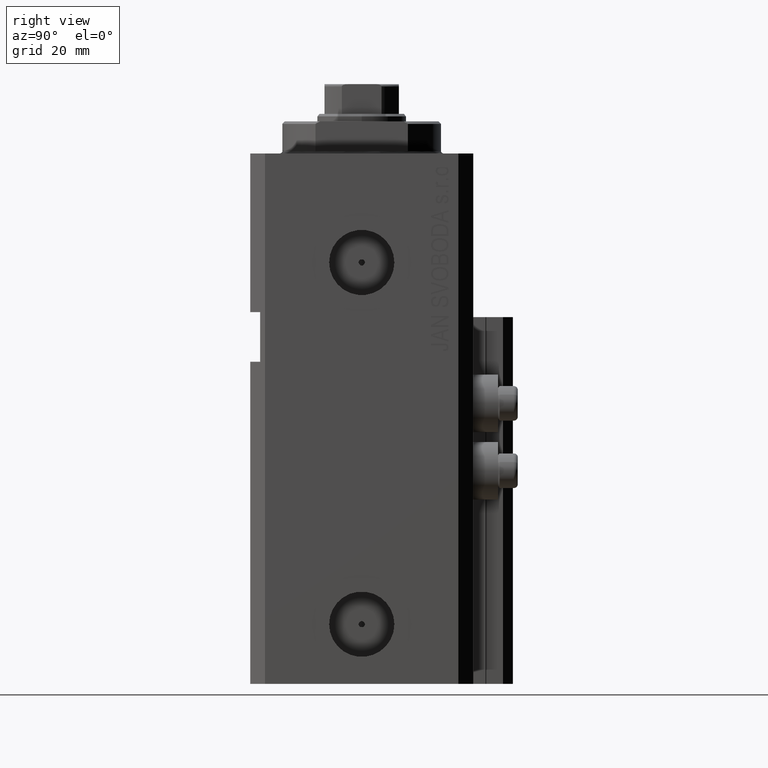
[diagram: clean part render]
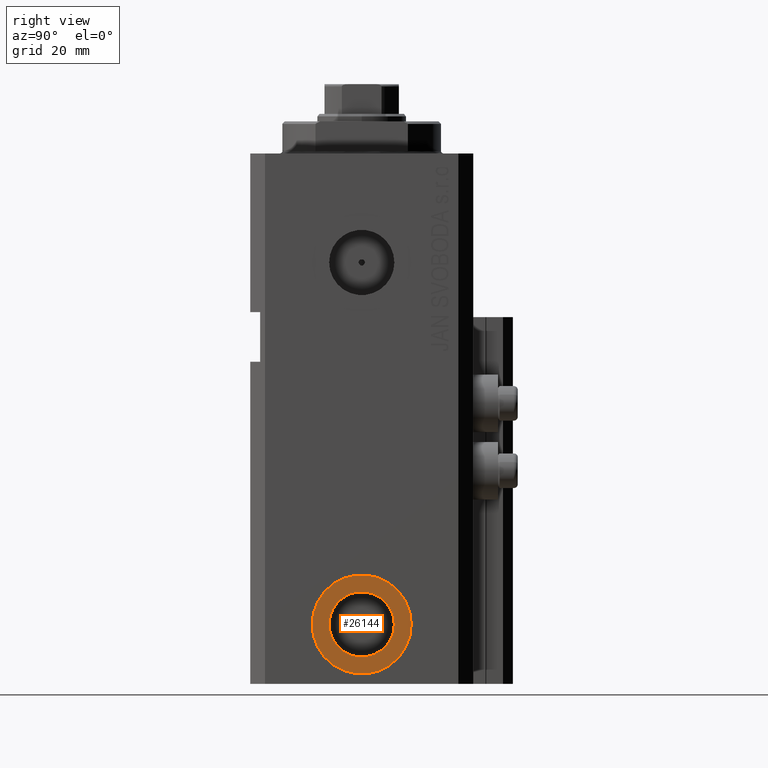
[diagram: same view with one face highlighted and labeled with its STEP entity id]
A machine part, right view. The second image highlights one B-rep face of the part: STEP entity #26144.
In plain terms, the highlighted planar face has unit normal (1, -0, 0).
Its self-contained STEP definition (entity closure, byte-faithful):
#1981 = CARTESIAN_POINT ( 'NONE',  ( 32.39999999999686509, 6.579999999999555982, -95.00000000000000000 ) ) ;
#2580 = EDGE_CURVE ( 'NONE', #37203, #25277, #24214, .T. ) ;
#3668 = EDGE_LOOP ( 'NONE', ( #43397, #41350 ) ) ;
#4044 = CARTESIAN_POINT ( 'NONE',  ( 32.39999999999690061, 9.999999999999563016, -95.00000000000000000 ) ) ;
#5225 = CIRCLE ( 'NONE', #30976, 6.579999999999987637 ) ;
#5381 = PLANE ( 'NONE',  #40362 ) ;
#5421 = CIRCLE ( 'NONE', #16320, 9.999999999999994671 ) ;
#7460 = CIRCLE ( 'NONE', #27710, 9.999999999999994671 ) ;
#7894 = CARTESIAN_POINT ( 'NONE',  ( 32.39999999999677271, -4.323464663203420381E-13, -95.00000000000000000 ) ) ;
#8162 = FACE_BOUND ( 'NONE', #3668, .T. ) ;
#14435 = DIRECTION ( 'NONE',  ( 1.370906090437600963E-14, 1.000000000000000000, 0.000000000000000000 ) ) ;
#16320 = AXIS2_PLACEMENT_3D ( 'NONE', #18799, #25896, #22231 ) ;
#16435 = AXIS2_PLACEMENT_3D ( 'NONE', #7894, #34242, #30101 ) ;
#17471 = EDGE_CURVE ( 'NONE', #22037, #25575, #7460, .T. ) ;
#18799 = CARTESIAN_POINT ( 'NONE',  ( 32.39999999999677271, -4.323464663203420381E-13, -95.00000000000000000 ) ) ;
#18888 = DIRECTION ( 'NONE',  ( 1.334402673828349134E-14, 1.000000000000000000, 0.000000000000000000 ) ) ;
#19377 = CARTESIAN_POINT ( 'NONE',  ( 32.39999999999677271, -4.323464663203420381E-13, -95.00000000000000000 ) ) ;
#22037 = VERTEX_POINT ( 'NONE', #4044 ) ;
#22231 = DIRECTION ( 'NONE',  ( 1.318389841742374023E-14, 1.000000000000000000, 0.000000000000000000 ) ) ;
#23520 = DIRECTION ( 'NONE',  ( 1.000000000000000000, -1.334402673828349134E-14, 0.000000000000000000 ) ) ;
#24214 = CIRCLE ( 'NONE', #16435, 6.579999999999987637 ) ;
#25277 = VERTEX_POINT ( 'NONE', #25423 ) ;
#25423 = CARTESIAN_POINT ( 'NONE',  ( 32.39999999999668034, -6.580000000000419291, -95.00000000000000000 ) ) ;
#25575 = VERTEX_POINT ( 'NONE', #28304 ) ;
#25896 = DIRECTION ( 'NONE',  ( 1.000000000000000000, -1.334402673828349134E-14, 0.000000000000000000 ) ) ;
#26144 = ADVANCED_FACE ( 'NONE', ( #8162, #37677 ), #5381, .T. ) ;
#27184 = CARTESIAN_POINT ( 'NONE',  ( 32.39999999999677271, -4.323464663203420381E-13, -95.00000000000000000 ) ) ;
#27710 = AXIS2_PLACEMENT_3D ( 'NONE', #27184, #23520, #38399 ) ;
#28304 = CARTESIAN_POINT ( 'NONE',  ( 32.39999999999663771, -10.00000000000042633, -95.00000000000000000 ) ) ;
#28613 = CARTESIAN_POINT ( 'NONE',  ( 32.39999999999677271, -4.323464663203420381E-13, -95.00000000000000000 ) ) ;
#29320 = EDGE_LOOP ( 'NONE', ( #47277, #44692 ) ) ;
#30101 = DIRECTION ( 'NONE',  ( 1.370906090437600963E-14, 1.000000000000000000, 0.000000000000000000 ) ) ;
#30920 = EDGE_CURVE ( 'NONE', #25277, #37203, #5225, .T. ) ;
#30976 = AXIS2_PLACEMENT_3D ( 'NONE', #28613, #47380, #14435 ) ;
#34242 = DIRECTION ( 'NONE',  ( 1.000000000000000000, -1.334402673828349134E-14, 0.000000000000000000 ) ) ;
#37203 = VERTEX_POINT ( 'NONE', #1981 ) ;
#37677 = FACE_OUTER_BOUND ( 'NONE', #29320, .T. ) ;
#38399 = DIRECTION ( 'NONE',  ( 1.318389841742374023E-14, 1.000000000000000000, 0.000000000000000000 ) ) ;
#40362 = AXIS2_PLACEMENT_3D ( 'NONE', #19377, #45468, #18888 ) ;
#40499 = EDGE_CURVE ( 'NONE', #25575, #22037, #5421, .T. ) ;
#41350 = ORIENTED_EDGE ( 'NONE', *, *, #30920, .F. ) ;
#43397 = ORIENTED_EDGE ( 'NONE', *, *, #2580, .F. ) ;
#44692 = ORIENTED_EDGE ( 'NONE', *, *, #40499, .T. ) ;
#45468 = DIRECTION ( 'NONE',  ( 1.000000000000000000, -1.334402673828349134E-14, 0.000000000000000000 ) ) ;
#47277 = ORIENTED_EDGE ( 'NONE', *, *, #17471, .T. ) ;
#47380 = DIRECTION ( 'NONE',  ( 1.000000000000000000, -1.334402673828349134E-14, 0.000000000000000000 ) ) ;